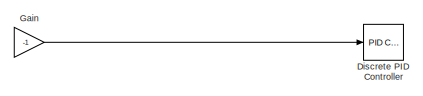
[diagram: root canvas - part 1/4, top center region]
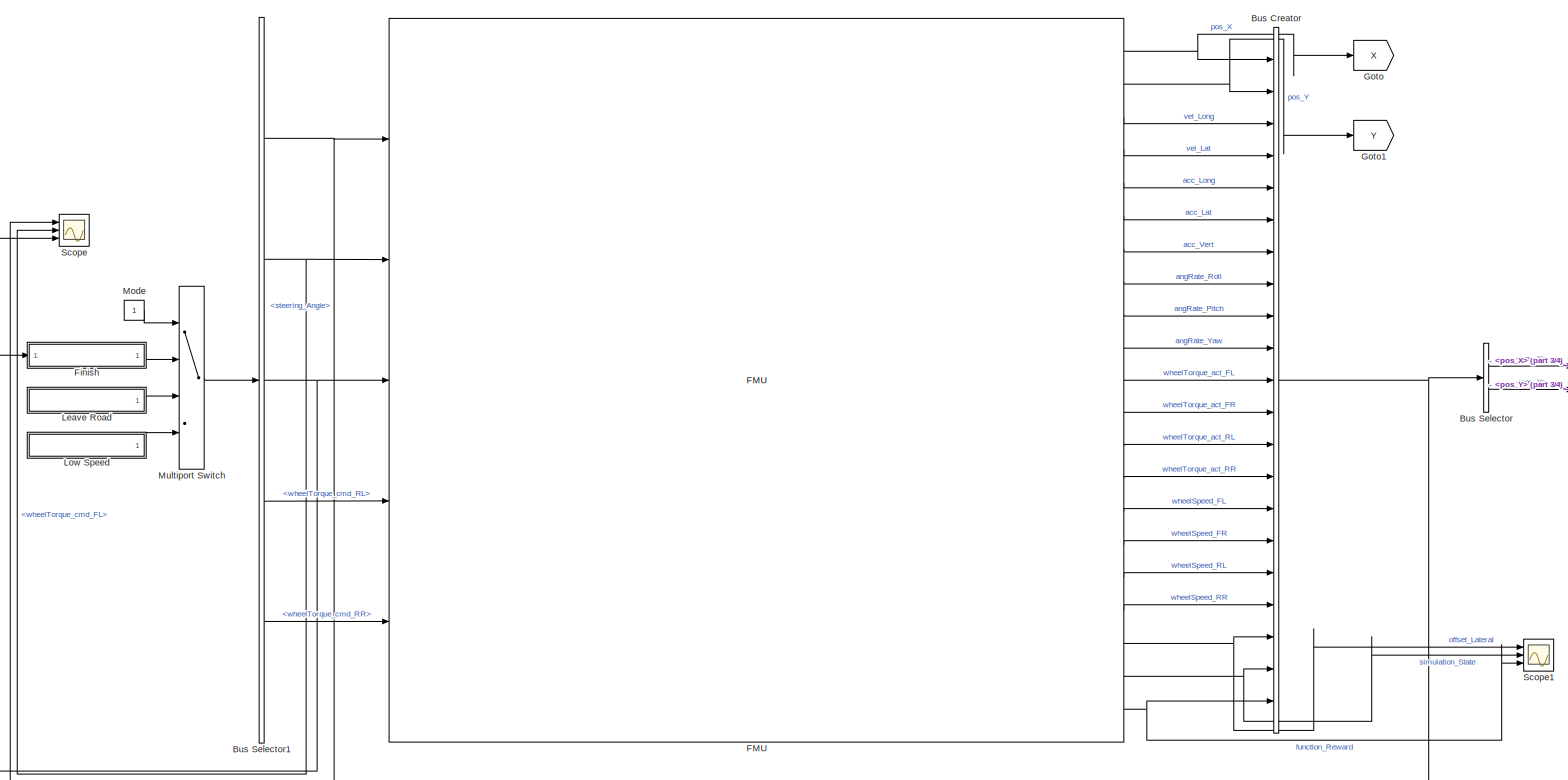
[diagram: root canvas - part 2/4, most of the canvas]
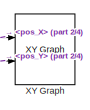
[diagram: root canvas - part 3/4, middle right region]
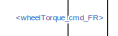
[diagram: root canvas - part 4/4, middle left region]
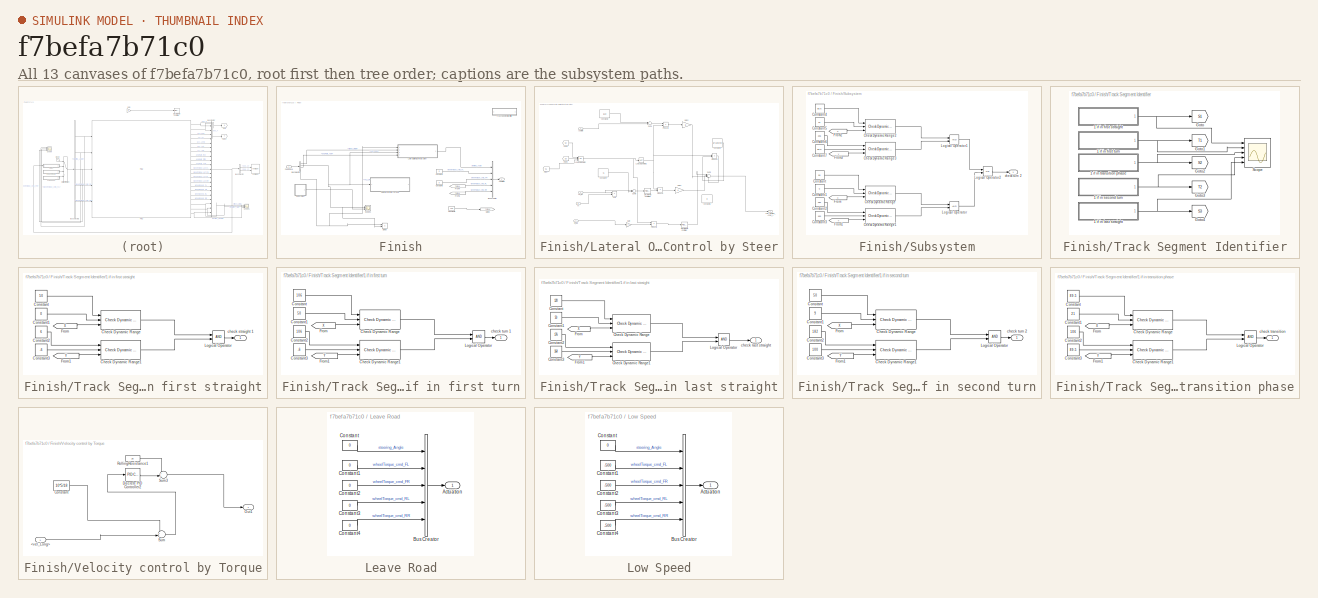
[diagram: thumbnail index - all 13 canvases of the model, root first then tree order]
MODEL slx_f7befa7b71c0
KIND model
CONFIG AbsTol = auto
CONFIG EnableMultiTasking = off
CONFIG FixedStep = 0.01
CONFIG MaxStep = auto
CONFIG MinStep = auto
CONFIG RelTol = 1e-3
CONFIG SampleTimeConstraint = Unconstrained
CONFIG Solver = FixedStepDiscrete
CONFIG SolverName = FixedStepDiscrete
CONFIG StartTime = 0.0
CONFIG StopTime = 25
BLOCK [BusCreator] Bus Creator
  DisplayOption = bar
  InheritFromInputs = on
  Inputs = 21
  Ports = [21, 1]
BLOCK [BusSelector] Bus Selector
  OutputAsBus = off
  OutputSignals = pos_X,pos_Y
  Ports = [1, 2]
BLOCK [BusSelector] Bus Selector1
  OutputAsBus = off
  OutputSignals = steering_Angle,wheelTorque_cmd_FL,wheelTorque_cmd_FR,wheelTorque_cmd_RL,wheelTorque_cmd_RR
  Ports = [1, 5]
BLOCK [Reference] Discrete PID Controller  REF=simulink/Continuous/PID Controller
  Ports = [1, 1]
  SourceBlock = simulink/Continuous/PID Controller
  SourceProductBaseCode = SL
  SourceProductName = Simulink
  SourceType = PID 1dof
BLOCK [FMU] FMU
  FMUMode = CoSimulation
  FMUName = MED2018_VehicleModelold.fmu
  FMUSampleTime = -1
  MaskDisplay = if (exist([Simulink.fileGenControl('get','CacheFolder') '\slprj\_fmu\29db2707c155699f4df1bff56a9fca68\MED2018_VehicleModelold\model.png'],'file'))\n    image([Simulink.fileGenControl('get','CacheFolder') '\slprj\_fmu\29db2707c155699f4df1bff56a9fca68\MED2018_VehicleModelold\model.png']);\n    text(0.03, 0.97, 'MED2018.VehicleModel', 'horizontalAlignment', 'left', 'verticalAlignment', 'top');\nelse\n   ...<+1083ch>
  MaskPromptString = Communication StepsizeCommunication stepsize between FMU and Simulink
  MaskType = MED2018.VehicleModel [Co-Simulation, v2.0]
  Ports = [5, 21]
BLOCK [SubSystem] Finish
  Ports = [1, 1]
  RequestExecContextInheritance = off
  Variant = off
BLOCK [Outport] Finish/Actuation
  IconDisplay = Port number
BLOCK [BusCreator] Finish/Bus Creator
  DisplayOption = bar
  InheritFromInputs = on
  Inputs = 5
  Ports = [5, 1]
BLOCK [BusSelector] Finish/Bus Selector
  OutputAsBus = off
  OutputSignals = offset_Lateral,vel_Long,angRate_Yaw,vel_Lat
  Ports = [1, 4]
BLOCK [Constant] Finish/Constant2
  Value = 0
BLOCK [Constant] Finish/Constant5
  Value = 0
BLOCK [Constant] Finish/Constant6
  Value = 100
BLOCK [Product] Finish/Divide
  InputSameDT = off
  Inputs = */
  OutDataTypeStr = Inherit: Inherit via internal rule
  Ports = [2, 1]
  RndMeth = Floor
  SaturateOnIntegerOverflow = off
BLOCK [Inport] Finish/Feedback
  IconDisplay = Port number
BLOCK [From] Finish/From1
  GotoTag = Torque
BLOCK [From] Finish/From7
  GotoTag = Torque
BLOCK [Goto] Finish/Goto3
  GotoTag = Torque
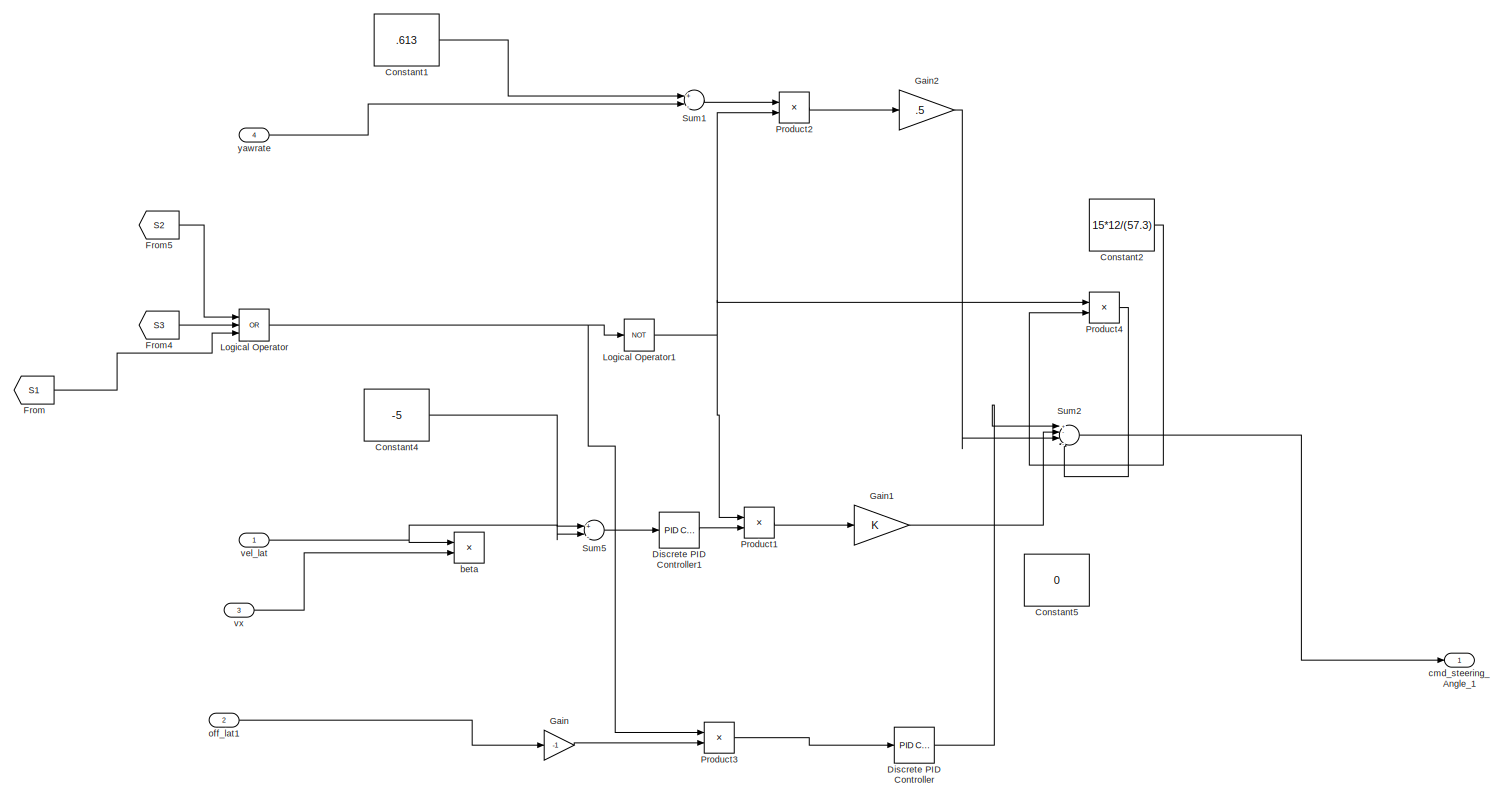
[diagram: Finish/Lateral Offset Control by Steer - part 1/1, most of the canvas]
BLOCK [SubSystem] Finish/Lateral Offset Control by Steer
  Ports = [4, 1]
  RequestExecContextInheritance = off
  Variant = off
BLOCK [Constant] Finish/Lateral Offset Control by Steer/Constant1
  Value = .613
BLOCK [Constant] Finish/Lateral Offset Control by Steer/Constant2
  Value = 15*12/(57.3)
BLOCK [Constant] Finish/Lateral Offset Control by Steer/Constant4
  Value = -5
BLOCK [Constant] Finish/Lateral Offset Control by Steer/Constant5
  Value = 0
BLOCK [Reference] Finish/Lateral Offset Control by Steer/Discrete PID Controller  REF=simulink/Continuous/PID Controller
  Ports = [1, 1]
  SourceBlock = simulink/Continuous/PID Controller
  SourceProductBaseCode = SL
  SourceProductName = Simulink
  SourceType = PID 1dof
BLOCK [Reference] Finish/Lateral Offset Control by Steer/Discrete PID Controller1  REF=simulink/Continuous/PID Controller
  Ports = [1, 1]
  SourceBlock = simulink/Continuous/PID Controller
  SourceProductBaseCode = SL
  SourceProductName = Simulink
  SourceType = PID 1dof
BLOCK [From] Finish/Lateral Offset Control by Steer/From
  GotoTag = S1
  TagVisibility = global
BLOCK [From] Finish/Lateral Offset Control by Steer/From4
  GotoTag = S3
  TagVisibility = global
BLOCK [From] Finish/Lateral Offset Control by Steer/From5
  GotoTag = S2
  TagVisibility = global
BLOCK [Gain] Finish/Lateral Offset Control by Steer/Gain
  Gain = -1
  OutDataTypeStr = Inherit: Inherit via internal rule
  ParamDataTypeStr = Inherit: Inherit via internal rule
  SaturateOnIntegerOverflow = off
BLOCK [Gain] Finish/Lateral Offset Control by Steer/Gain1
  OutDataTypeStr = Inherit: Inherit via internal rule
  ParamDataTypeStr = Inherit: Inherit via internal rule
  SaturateOnIntegerOverflow = off
BLOCK [Gain] Finish/Lateral Offset Control by Steer/Gain2
  Gain = .5
  OutDataTypeStr = Inherit: Inherit via internal rule
  ParamDataTypeStr = Inherit: Inherit via internal rule
  SaturateOnIntegerOverflow = off
BLOCK [Logic] Finish/Lateral Offset Control by Steer/Logical Operator
  AllPortsSameDT = off
  Inputs = 3
  Operator = OR
  OutDataTypeStr = boolean
  Ports = [3, 1]
BLOCK [Logic] Finish/Lateral Offset Control by Steer/Logical Operator1
  AllPortsSameDT = off
  Inputs = 3
  Operator = NOT
  OutDataTypeStr = boolean
  Ports = [1, 1]
BLOCK [Product] Finish/Lateral Offset Control by Steer/Product1
  InputSameDT = off
  OutDataTypeStr = Inherit: Inherit via internal rule
  Ports = [2, 1]
  RndMeth = Floor
  SaturateOnIntegerOverflow = off
BLOCK [Product] Finish/Lateral Offset Control by Steer/Product2
  InputSameDT = off
  OutDataTypeStr = Inherit: Inherit via internal rule
  Ports = [2, 1]
  RndMeth = Floor
  SaturateOnIntegerOverflow = off
BLOCK [Product] Finish/Lateral Offset Control by Steer/Product3
  InputSameDT = off
  OutDataTypeStr = Inherit: Inherit via internal rule
  Ports = [2, 1]
  RndMeth = Floor
  SaturateOnIntegerOverflow = off
BLOCK [Product] Finish/Lateral Offset Control by Steer/Product4
  InputSameDT = off
  OutDataTypeStr = Inherit: Inherit via internal rule
  Ports = [2, 1]
  RndMeth = Floor
  SaturateOnIntegerOverflow = off
BLOCK [Sum] Finish/Lateral Offset Control by Steer/Sum1
  InputSameDT = off
  Inputs = +|-
  OutDataTypeStr = Inherit: Inherit via internal rule
  Ports = [2, 1]
  SaturateOnIntegerOverflow = off
BLOCK [Sum] Finish/Lateral Offset Control by Steer/Sum2
  IconShape = round
  InputSameDT = off
  Inputs = +-|-+
  OutDataTypeStr = Inherit: Inherit via internal rule
  Ports = [4, 1]
  SaturateOnIntegerOverflow = off
BLOCK [Sum] Finish/Lateral Offset Control by Steer/Sum5
  InputSameDT = off
  Inputs = +|-
  OutDataTypeStr = Inherit: Inherit via internal rule
  Ports = [2, 1]
  SaturateOnIntegerOverflow = off
BLOCK [Product] Finish/Lateral Offset Control by Steer/beta
  InputSameDT = off
  Inputs = */
  OutDataTypeStr = Inherit: Inherit via internal rule
  Ports = [2, 1]
  RndMeth = Floor
  SaturateOnIntegerOverflow = off
BLOCK [Outport] Finish/Lateral Offset Control by Steer/cmd_steering_Angle_1
  IconDisplay = Port number
BLOCK [Inport] Finish/Lateral Offset Control by Steer/off_lat1
  IconDisplay = Port number
  Port = 2
BLOCK [Inport] Finish/Lateral Offset Control by Steer/vel_lat
  IconDisplay = Port number
BLOCK [Inport] Finish/Lateral Offset Control by Steer/vx
  IconDisplay = Port number
  Port = 3
BLOCK [Inport] Finish/Lateral Offset Control by Steer/yawrate
  IconDisplay = Port number
  Port = 4
BLOCK [Scope] Finish/Scope1
  NumInputPorts = 2
  Ports = [2]
  ScopeSpecificationString = Simulink.scopes.TimeScopeBlockCfg('CurrentConfiguration', extmgr.ConfigurationSet(extmgr.Configuration('Core','General UI',true),extmgr.Configuration('Core','Source UI',true),extmgr.Configuration('Sources','WiredSimulink',true,'DataLoggingVariableName','ScopeData1'),extmgr.Configuration('Visuals','Time Domain',true,'SerializedDisplays',{struct('MinYLimReal','6.68444','MaxYLimReal','26.68444','YLab...<+3091ch>
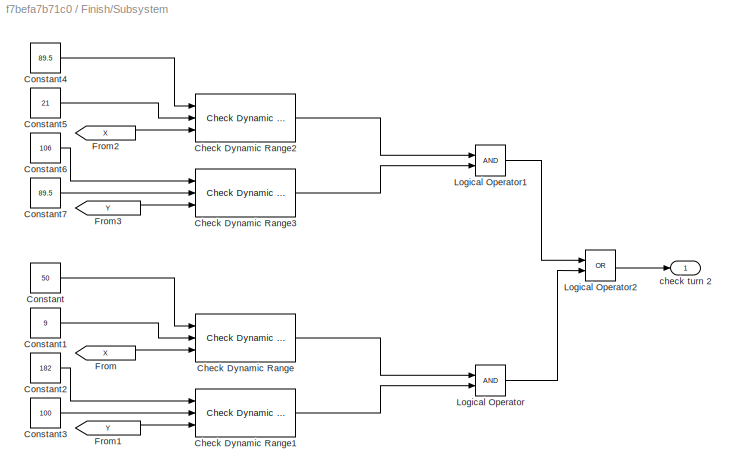
BLOCK [SubSystem] Finish/Subsystem
  Ports = [0, 1]
  RequestExecContextInheritance = off
  Variant = off
BLOCK [Reference] Finish/Subsystem/Check Dynamic Range  REF=simulink/Model
Verification/Check 
Dynamic Range
  Description = min < u < max
  Ports = [3, 1]
  SourceBlock = simulink/Model\nVerification/Check \nDynamic Range
  SourceProductBaseCode = SL
  SourceProductName = Simulink
  SourceType = Checks_DRange
BLOCK [Reference] Finish/Subsystem/Check Dynamic Range1  REF=simulink/Model
Verification/Check 
Dynamic Range
  Description = min < u < max
  Ports = [3, 1]
  SourceBlock = simulink/Model\nVerification/Check \nDynamic Range
  SourceProductBaseCode = SL
  SourceProductName = Simulink
  SourceType = Checks_DRange
BLOCK [Reference] Finish/Subsystem/Check Dynamic Range2  REF=simulink/Model
Verification/Check 
Dynamic Range
  Description = min < u < max
  Ports = [3, 1]
  SourceBlock = simulink/Model\nVerification/Check \nDynamic Range
  SourceProductBaseCode = SL
  SourceProductName = Simulink
  SourceType = Checks_DRange
BLOCK [Reference] Finish/Subsystem/Check Dynamic Range3  REF=simulink/Model
Verification/Check 
Dynamic Range
  Description = min < u < max
  Ports = [3, 1]
  SourceBlock = simulink/Model\nVerification/Check \nDynamic Range
  SourceProductBaseCode = SL
  SourceProductName = Simulink
  SourceType = Checks_DRange
BLOCK [Constant] Finish/Subsystem/Constant
  Value = 50
BLOCK [Constant] Finish/Subsystem/Constant1
  Value = 9
BLOCK [Constant] Finish/Subsystem/Constant2
  Value = 182
BLOCK [Constant] Finish/Subsystem/Constant3
  Value = 100
BLOCK [Constant] Finish/Subsystem/Constant4
  Value = 89.5
BLOCK [Constant] Finish/Subsystem/Constant5
  Value = 21
BLOCK [Constant] Finish/Subsystem/Constant6
  Value = 106
BLOCK [Constant] Finish/Subsystem/Constant7
  Value = 89.5
BLOCK [From] Finish/Subsystem/From
  GotoTag = X
  TagVisibility = global
BLOCK [From] Finish/Subsystem/From1
  GotoTag = Y
  TagVisibility = global
BLOCK [From] Finish/Subsystem/From2
  GotoTag = X
  TagVisibility = global
BLOCK [From] Finish/Subsystem/From3
  GotoTag = Y
  TagVisibility = global
BLOCK [Logic] Finish/Subsystem/Logical Operator
  AllPortsSameDT = off
  OutDataTypeStr = boolean
  Ports = [2, 1]
BLOCK [Logic] Finish/Subsystem/Logical Operator1
  AllPortsSameDT = off
  OutDataTypeStr = boolean
  Ports = [2, 1]
BLOCK [Logic] Finish/Subsystem/Logical Operator2
  AllPortsSameDT = off
  Operator = OR
  OutDataTypeStr = boolean
  Ports = [2, 1]
BLOCK [Outport] Finish/Subsystem/check turn 2
  IconDisplay = Port number
BLOCK [SubSystem] Finish/Track Segment Identifier
  Ports = []
  RequestExecContextInheritance = off
  Variant = off
BLOCK [SubSystem] Finish/Track Segment Identifier/1 if in first straight
  Ports = [0, 1]
  RequestExecContextInheritance = off
  Variant = off
BLOCK [Reference] Finish/Track Segment Identifier/1 if in first straight/Check Dynamic Range  REF=simulink/Model
Verification/Check 
Dynamic Range
  Description = min < u < max
  Ports = [3, 1]
  SourceBlock = simulink/Model\nVerification/Check \nDynamic Range
  SourceProductBaseCode = SL
  SourceProductName = Simulink
  SourceType = Checks_DRange
BLOCK [Reference] Finish/Track Segment Identifier/1 if in first straight/Check Dynamic Range1  REF=simulink/Model
Verification/Check 
Dynamic Range
  Description = min < u < max
  Ports = [3, 1]
  SourceBlock = simulink/Model\nVerification/Check \nDynamic Range
  SourceProductBaseCode = SL
  SourceProductName = Simulink
  SourceType = Checks_DRange
BLOCK [Constant] Finish/Track Segment Identifier/1 if in first straight/Constant
  Value = 50
BLOCK [Constant] Finish/Track Segment Identifier/1 if in first straight/Constant1
  Value = 0
BLOCK [Constant] Finish/Track Segment Identifier/1 if in first straight/Constant2
  Value = 6
BLOCK [Constant] Finish/Track Segment Identifier/1 if in first straight/Constant3
  Value = -6
BLOCK [From] Finish/Track Segment Identifier/1 if in first straight/From
  GotoTag = X
  TagVisibility = global
BLOCK [From] Finish/Track Segment Identifier/1 if in first straight/From1
  GotoTag = Y
  TagVisibility = global
BLOCK [Logic] Finish/Track Segment Identifier/1 if in first straight/Logical Operator
  AllPortsSameDT = off
  OutDataTypeStr = boolean
  Ports = [2, 1]
BLOCK [Outport] Finish/Track Segment Identifier/1 if in first straight/check straight 1
  IconDisplay = Port number
BLOCK [SubSystem] Finish/Track Segment Identifier/1 if in first turn
  Ports = [0, 1]
  RequestExecContextInheritance = off
  Variant = off
BLOCK [Reference] Finish/Track Segment Identifier/1 if in first turn/Check Dynamic Range  REF=simulink/Model
Verification/Check 
Dynamic Range
  Description = min < u < max
  Ports = [3, 1]
  SourceBlock = simulink/Model\nVerification/Check \nDynamic Range
  SourceProductBaseCode = SL
  SourceProductName = Simulink
  SourceType = Checks_DRange
BLOCK [Reference] Finish/Track Segment Identifier/1 if in first turn/Check Dynamic Range1  REF=simulink/Model
Verification/Check 
Dynamic Range
  Description = min < u < max
  Ports = [3, 1]
  SourceBlock = simulink/Model\nVerification/Check \nDynamic Range
  SourceProductBaseCode = SL
  SourceProductName = Simulink
  SourceType = Checks_DRange
BLOCK [Constant] Finish/Track Segment Identifier/1 if in first turn/Constant
  Value = 106
BLOCK [Constant] Finish/Track Segment Identifier/1 if in first turn/Constant1
  Value = 50
BLOCK [Constant] Finish/Track Segment Identifier/1 if in first turn/Constant2
  Value = 106
BLOCK [Constant] Finish/Track Segment Identifier/1 if in first turn/Constant3
  Value = -6
BLOCK [From] Finish/Track Segment Identifier/1 if in first turn/From
  GotoTag = X
  TagVisibility = global
BLOCK [From] Finish/Track Segment Identifier/1 if in first turn/From1
  GotoTag = Y
  TagVisibility = global
BLOCK [Logic] Finish/Track Segment Identifier/1 if in first turn/Logical Operator
  AllPortsSameDT = off
  OutDataTypeStr = boolean
  Ports = [2, 1]
BLOCK [Outport] Finish/Track Segment Identifier/1 if in first turn/check turn 1
  IconDisplay = Port number
BLOCK [SubSystem] Finish/Track Segment Identifier/1 if in last straight
  Ports = [0, 1]
  RequestExecContextInheritance = off
  Variant = off
BLOCK [Reference] Finish/Track Segment Identifier/1 if in last straight/Check Dynamic Range  REF=simulink/Model
Verification/Check 
Dynamic Range
  Description = min < u < max
  Ports = [3, 1]
  SourceBlock = simulink/Model\nVerification/Check \nDynamic Range
  SourceProductBaseCode = SL
  SourceProductName = Simulink
  SourceType = Checks_DRange
BLOCK [Reference] Finish/Track Segment Identifier/1 if in last straight/Check Dynamic Range1  REF=simulink/Model
Verification/Check 
Dynamic Range
  Description = min < u < max
  Ports = [3, 1]
  SourceBlock = simulink/Model\nVerification/Check \nDynamic Range
  SourceProductBaseCode = SL
  SourceProductName = Simulink
  SourceType = Checks_DRange
BLOCK [Constant] Finish/Track Segment Identifier/1 if in last straight/Constant
  Value = 120
BLOCK [Constant] Finish/Track Segment Identifier/1 if in last straight/Constant1
  Value = 50
BLOCK [Constant] Finish/Track Segment Identifier/1 if in last straight/Constant2
  Value = 176
BLOCK [Constant] Finish/Track Segment Identifier/1 if in last straight/Constant3
  Value = 164
BLOCK [From] Finish/Track Segment Identifier/1 if in last straight/From
  GotoTag = X
  TagVisibility = global
BLOCK [From] Finish/Track Segment Identifier/1 if in last straight/From1
  GotoTag = Y
  TagVisibility = global
BLOCK [Logic] Finish/Track Segment Identifier/1 if in last straight/Logical Operator
  AllPortsSameDT = off
  OutDataTypeStr = boolean
  Ports = [2, 1]
BLOCK [Outport] Finish/Track Segment Identifier/1 if in last straight/check last straight
  IconDisplay = Port number
BLOCK [SubSystem] Finish/Track Segment Identifier/1 if in second turn
  Ports = [0, 1]
  RequestExecContextInheritance = off
  Variant = off
BLOCK [Reference] Finish/Track Segment Identifier/1 if in second turn/Check Dynamic Range  REF=simulink/Model
Verification/Check 
Dynamic Range
  Description = min < u < max
  Ports = [3, 1]
  SourceBlock = simulink/Model\nVerification/Check \nDynamic Range
  SourceProductBaseCode = SL
  SourceProductName = Simulink
  SourceType = Checks_DRange
BLOCK [Reference] Finish/Track Segment Identifier/1 if in second turn/Check Dynamic Range1  REF=simulink/Model
Verification/Check 
Dynamic Range
  Description = min < u < max
  Ports = [3, 1]
  SourceBlock = simulink/Model\nVerification/Check \nDynamic Range
  SourceProductBaseCode = SL
  SourceProductName = Simulink
  SourceType = Checks_DRange
BLOCK [Constant] Finish/Track Segment Identifier/1 if in second turn/Constant
  Value = 50
BLOCK [Constant] Finish/Track Segment Identifier/1 if in second turn/Constant1
  Value = 9
BLOCK [Constant] Finish/Track Segment Identifier/1 if in second turn/Constant2
  Value = 182
BLOCK [Constant] Finish/Track Segment Identifier/1 if in second turn/Constant3
  Value = 100
BLOCK [From] Finish/Track Segment Identifier/1 if in second turn/From
  GotoTag = X
  TagVisibility = global
BLOCK [From] Finish/Track Segment Identifier/1 if in second turn/From1
  GotoTag = Y
  TagVisibility = global
BLOCK [Logic] Finish/Track Segment Identifier/1 if in second turn/Logical Operator
  AllPortsSameDT = off
  OutDataTypeStr = boolean
  Ports = [2, 1]
BLOCK [Outport] Finish/Track Segment Identifier/1 if in second turn/check turn 2
  IconDisplay = Port number
BLOCK [SubSystem] Finish/Track Segment Identifier/1 if in transition phase
  Ports = [0, 1]
  RequestExecContextInheritance = off
  Variant = off
BLOCK [Reference] Finish/Track Segment Identifier/1 if in transition phase/Check Dynamic Range  REF=simulink/Model
Verification/Check 
Dynamic Range
  Description = min < u < max
  Ports = [3, 1]
  SourceBlock = simulink/Model\nVerification/Check \nDynamic Range
  SourceProductBaseCode = SL
  SourceProductName = Simulink
  SourceType = Checks_DRange
BLOCK [Reference] Finish/Track Segment Identifier/1 if in transition phase/Check Dynamic Range1  REF=simulink/Model
Verification/Check 
Dynamic Range
  Description = min < u < max
  Ports = [3, 1]
  SourceBlock = simulink/Model\nVerification/Check \nDynamic Range
  SourceProductBaseCode = SL
  SourceProductName = Simulink
  SourceType = Checks_DRange
BLOCK [Constant] Finish/Track Segment Identifier/1 if in transition phase/Constant
  Value = 89.5
BLOCK [Constant] Finish/Track Segment Identifier/1 if in transition phase/Constant1
  Value = 21
BLOCK [Constant] Finish/Track Segment Identifier/1 if in transition phase/Constant2
  Value = 106
BLOCK [Constant] Finish/Track Segment Identifier/1 if in transition phase/Constant3
  Value = 89.5
BLOCK [From] Finish/Track Segment Identifier/1 if in transition phase/From
  GotoTag = X
  TagVisibility = global
BLOCK [From] Finish/Track Segment Identifier/1 if in transition phase/From1
  GotoTag = Y
  TagVisibility = global
BLOCK [Logic] Finish/Track Segment Identifier/1 if in transition phase/Logical Operator
  AllPortsSameDT = off
  OutDataTypeStr = boolean
  Ports = [2, 1]
BLOCK [Outport] Finish/Track Segment Identifier/1 if in transition phase/check transition
  IconDisplay = Port number
BLOCK [Goto] Finish/Track Segment Identifier/Goto
  GotoTag = S1
  TagVisibility = global
BLOCK [Goto] Finish/Track Segment Identifier/Goto1
  GotoTag = T1
  TagVisibility = global
BLOCK [Goto] Finish/Track Segment Identifier/Goto2
  GotoTag = S2
  TagVisibility = global
BLOCK [Goto] Finish/Track Segment Identifier/Goto3
  GotoTag = T2
  TagVisibility = global
BLOCK [Goto] Finish/Track Segment Identifier/Goto4
  GotoTag = S3
  TagVisibility = global
BLOCK [Scope] Finish/Track Segment Identifier/Scope
  NumInputPorts = 5
  Ports = [5]
  ScopeSpecificationString = Simulink.scopes.TimeScopeBlockCfg('CurrentConfiguration', extmgr.ConfigurationSet(extmgr.Configuration('Core','General UI',true),extmgr.Configuration('Core','Source UI',true),extmgr.Configuration('Sources','WiredSimulink',true),extmgr.Configuration('Visuals','Time Domain',true,'SerializedDisplays',{struct('MinYLimReal','-0.125','MaxYLimReal','1.125','YLabelReal','','MinYLimMag','0.00000','MaxYLimM...<+1476ch>
BLOCK [SubSystem] Finish/Velocity control by Torque
  Ports = [1, 1]
  RequestExecContextInheritance = off
  Variant = off
BLOCK [Inport] Finish/Velocity control by Torque/<vel_Long>
  IconDisplay = Port number
BLOCK [Constant] Finish/Velocity control by Torque/Constant
  Value = 10*5/18
BLOCK [Reference] Finish/Velocity control by Torque/Discrete PID Controller2  REF=simulink/Continuous/PID Controller
  Ports = [1, 1]
  SourceBlock = simulink/Continuous/PID Controller
  SourceProductBaseCode = SL
  SourceProductName = Simulink
  SourceType = PID 1dof
BLOCK [Outport] Finish/Velocity control by Torque/Out1
  IconDisplay = Port number
BLOCK [Constant] Finish/Velocity control by Torque/RollingResistance1
  Value = 25
BLOCK [Sum] Finish/Velocity control by Torque/Sum
  IconShape = round
  InputSameDT = off
  Inputs = +-|
  OutDataTypeStr = Inherit: Inherit via internal rule
  Ports = [2, 1]
  SaturateOnIntegerOverflow = off
BLOCK [Sum] Finish/Velocity control by Torque/Sum3
  IconShape = round
  InputSameDT = off
  Inputs = ++|
  OutDataTypeStr = Inherit: Inherit via internal rule
  Ports = [2, 1]
  SaturateOnIntegerOverflow = off
BLOCK [Gain] Gain
  Gain = -1
  OutDataTypeStr = Inherit: Inherit via internal rule
  ParamDataTypeStr = Inherit: Inherit via internal rule
  SaturateOnIntegerOverflow = off
BLOCK [Goto] Goto
  GotoTag = X
  TagVisibility = global
BLOCK [Goto] Goto1
  GotoTag = Y
  TagVisibility = global
BLOCK [SubSystem] Leave Road
  Ports = [0, 1]
  RequestExecContextInheritance = off
  Variant = off
BLOCK [Outport] Leave Road/Actuation
  IconDisplay = Port number
BLOCK [BusCreator] Leave Road/Bus Creator
  DisplayOption = bar
  InheritFromInputs = on
  Inputs = 5
  Ports = [5, 1]
BLOCK [Constant] Leave Road/Constant
  Value = 0
BLOCK [Constant] Leave Road/Constant1
  Value = 0
BLOCK [Constant] Leave Road/Constant2
  Value = 0
BLOCK [Constant] Leave Road/Constant3
  Value = 0
BLOCK [Constant] Leave Road/Constant4
  Value = 0
BLOCK [SubSystem] Low Speed
  Ports = [0, 1]
  RequestExecContextInheritance = off
  Variant = off
BLOCK [Outport] Low Speed/Actuation
  IconDisplay = Port number
BLOCK [BusCreator] Low Speed/Bus Creator
  DisplayOption = bar
  InheritFromInputs = on
  Inputs = 5
  Ports = [5, 1]
BLOCK [Constant] Low Speed/Constant
  Value = 0
BLOCK [Constant] Low Speed/Constant1
  Value = -500
BLOCK [Constant] Low Speed/Constant2
  Value = -500
BLOCK [Constant] Low Speed/Constant3
  Value = -500
BLOCK [Constant] Low Speed/Constant4
  Value = -500
BLOCK [Constant] Mode
BLOCK [MultiPortSwitch] Multiport Switch
  InputSameDT = off
  Ports = [4, 1]
  SaturateOnIntegerOverflow = off
BLOCK [Scope] Scope
  NumInputPorts = 3
  Ports = [3]
  ScopeSpecificationString = Simulink.scopes.TimeScopeBlockCfg('CurrentConfiguration', extmgr.ConfigurationSet(extmgr.Configuration('Core','General UI',true),extmgr.Configuration('Core','Source UI',true),extmgr.Configuration('Sources','WiredSimulink',true),extmgr.Configuration('Visuals','Time Domain',true,'SerializedDisplays',{struct('MinYLimReal','-8.3368','MaxYLimReal','1.34708','YLabelReal','','MinYLimMag','0.00000','MaxYL...<+2736ch>
BLOCK [Scope] Scope1
  NumInputPorts = 3
  Ports = [3]
  ScopeSpecificationString = Simulink.scopes.TimeScopeBlockCfg('CurrentConfiguration', extmgr.ConfigurationSet(extmgr.Configuration('Core','General UI',true),extmgr.Configuration('Core','Source UI',true),extmgr.Configuration('Sources','WiredSimulink',true,'DataLoggingVariableName','ScopeData1'),extmgr.Configuration('Visuals','Time Domain',true,'SerializedDisplays',{struct('MinYLimReal','-38.76728','MaxYLimReal','71.25309','YL...<+3112ch>
BLOCK [Reference] XY Graph  REF=simulink/Sinks/XY Graph
  Ports = [2]
  SourceBlock = simulink/Sinks/XY Graph
  SourceProductBaseCode = SL
  SourceProductName = Simulink
  SourceType = XY scope.
NET Bus Creator:1 -> Bus Selector:1, Finish:1
NET Bus Selector1:1 -> FMU:1, Scope:1
NET Bus Selector1:2 -> FMU:2, Scope:2
NET Bus Selector1:3 -> FMU:3, Scope:3
LINE Bus Selector1:4 -> FMU:4
LINE Bus Selector1:5 -> FMU:5
LINE Bus Selector:1 -> XY Graph:1
LINE Bus Selector:2 -> XY Graph:2
NET FMU:1 -> Bus Creator:1, Goto:1
LINE FMU:10 -> Bus Creator:10
LINE FMU:11 -> Bus Creator:11
LINE FMU:12 -> Bus Creator:12
LINE FMU:13 -> Bus Creator:13
LINE FMU:14 -> Bus Creator:14
LINE FMU:15 -> Bus Creator:15
LINE FMU:16 -> Bus Creator:16
LINE FMU:17 -> Bus Creator:17
LINE FMU:18 -> Bus Creator:18
NET FMU:19 -> Bus Creator:19, Scope1:1
NET FMU:2 -> Bus Creator:2, Goto1:1
NET FMU:20 -> Bus Creator:20, Scope1:2
NET FMU:21 -> Bus Creator:21, Scope1:3
LINE FMU:3 -> Bus Creator:3
LINE FMU:4 -> Bus Creator:4
LINE FMU:5 -> Bus Creator:5
LINE FMU:6 -> Bus Creator:6
LINE FMU:7 -> Bus Creator:7
LINE FMU:8 -> Bus Creator:8
LINE FMU:9 -> Bus Creator:9
LINE Finish/Bus Creator:1 -> Finish/Actuation:1
LINE Finish/Bus Selector:1 -> Finish/Lateral Offset Control by Steer:2
NET Finish/Bus Selector:2 -> Finish/Divide:2, Finish/Lateral Offset Control by Steer:3, Finish/Scope1:1, Finish/Velocity control by Torque:1
LINE Finish/Bus Selector:3 -> Finish/Lateral Offset Control by Steer:4
NET Finish/Bus Selector:4 -> Finish/Divide:1, Finish/Lateral Offset Control by Steer:1
LINE Finish/Constant2:1 -> Finish/Bus Creator:2
LINE Finish/Constant5:1 -> Finish/Bus Creator:3
LINE Finish/Constant6:1 -> Finish/Goto3:1
LINE Finish/Feedback:1 -> Finish/Bus Selector:1
LINE Finish/From1:1 -> Finish/Bus Creator:5
LINE Finish/From7:1 -> Finish/Bus Creator:4
LINE Finish/Lateral Offset Control by Steer/Constant1:1 -> Finish/Lateral Offset Control by Steer/Sum1:1
LINE Finish/Lateral Offset Control by Steer/Constant2:1 -> Finish/Lateral Offset Control by Steer/Product4:2
LINE Finish/Lateral Offset Control by Steer/Constant4:1 -> Finish/Lateral Offset Control by Steer/Sum5:1
LINE Finish/Lateral Offset Control by Steer/Discrete PID Controller1:1 -> Finish/Lateral Offset Control by Steer/Product1:2
LINE Finish/Lateral Offset Control by Steer/Discrete PID Controller:1 -> Finish/Lateral Offset Control by Steer/Sum2:1
LINE Finish/Lateral Offset Control by Steer/From4:1 -> Finish/Lateral Offset Control by Steer/Logical Operator:2
LINE Finish/Lateral Offset Control by Steer/From5:1 -> Finish/Lateral Offset Control by Steer/Logical Operator:1
LINE Finish/Lateral Offset Control by Steer/From:1 -> Finish/Lateral Offset Control by Steer/Logical Operator:3
LINE Finish/Lateral Offset Control by Steer/Gain1:1 -> Finish/Lateral Offset Control by Steer/Sum2:2
LINE Finish/Lateral Offset Control by Steer/Gain2:1 -> Finish/Lateral Offset Control by Steer/Sum2:3
LINE Finish/Lateral Offset Control by Steer/Gain:1 -> Finish/Lateral Offset Control by Steer/Product3:2
NET Finish/Lateral Offset Control by Steer/Logical Operator1:1 -> Finish/Lateral Offset Control by Steer/Product1:1, Finish/Lateral Offset Control by Steer/Product2:2, Finish/Lateral Offset Control by Steer/Product4:1
NET Finish/Lateral Offset Control by Steer/Logical Operator:1 -> Finish/Lateral Offset Control by Steer/Logical Operator1:1, Finish/Lateral Offset Control by Steer/Product3:1
LINE Finish/Lateral Offset Control by Steer/Product1:1 -> Finish/Lateral Offset Control by Steer/Gain1:1
LINE Finish/Lateral Offset Control by Steer/Product2:1 -> Finish/Lateral Offset Control by Steer/Gain2:1
LINE Finish/Lateral Offset Control by Steer/Product3:1 -> Finish/Lateral Offset Control by Steer/Discrete PID Controller:1
LINE Finish/Lateral Offset Control by Steer/Product4:1 -> Finish/Lateral Offset Control by Steer/Sum2:4
LINE Finish/Lateral Offset Control by Steer/Sum1:1 -> Finish/Lateral Offset Control by Steer/Product2:1
LINE Finish/Lateral Offset Control by Steer/Sum2:1 -> Finish/Lateral Offset Control by Steer/cmd_steering_Angle_1:1
LINE Finish/Lateral Offset Control by Steer/Sum5:1 -> Finish/Lateral Offset Control by Steer/Discrete PID Controller1:1
LINE Finish/Lateral Offset Control by Steer/off_lat1:1 -> Finish/Lateral Offset Control by Steer/Gain:1
NET Finish/Lateral Offset Control by Steer/vel_lat:1 -> Finish/Lateral Offset Control by Steer/Sum5:2, Finish/Lateral Offset Control by Steer/beta:1
LINE Finish/Lateral Offset Control by Steer/vx:1 -> Finish/Lateral Offset Control by Steer/beta:2
LINE Finish/Lateral Offset Control by Steer/yawrate:1 -> Finish/Lateral Offset Control by Steer/Sum1:2
LINE Finish/Lateral Offset Control by Steer:1 -> Finish/Bus Creator:1
LINE Finish/Subsystem/Check Dynamic Range1:1 -> Finish/Subsystem/Logical Operator:2
LINE Finish/Subsystem/Check Dynamic Range2:1 -> Finish/Subsystem/Logical Operator1:1
LINE Finish/Subsystem/Check Dynamic Range3:1 -> Finish/Subsystem/Logical Operator1:2
LINE Finish/Subsystem/Check Dynamic Range:1 -> Finish/Subsystem/Logical Operator:1
LINE Finish/Subsystem/Constant1:1 -> Finish/Subsystem/Check Dynamic Range:2
LINE Finish/Subsystem/Constant2:1 -> Finish/Subsystem/Check Dynamic Range1:1
LINE Finish/Subsystem/Constant3:1 -> Finish/Subsystem/Check Dynamic Range1:2
LINE Finish/Subsystem/Constant4:1 -> Finish/Subsystem/Check Dynamic Range2:1
LINE Finish/Subsystem/Constant5:1 -> Finish/Subsystem/Check Dynamic Range2:2
LINE Finish/Subsystem/Constant6:1 -> Finish/Subsystem/Check Dynamic Range3:1
LINE Finish/Subsystem/Constant7:1 -> Finish/Subsystem/Check Dynamic Range3:2
LINE Finish/Subsystem/Constant:1 -> Finish/Subsystem/Check Dynamic Range:1
LINE Finish/Subsystem/From1:1 -> Finish/Subsystem/Check Dynamic Range1:3
LINE Finish/Subsystem/From2:1 -> Finish/Subsystem/Check Dynamic Range2:3
LINE Finish/Subsystem/From3:1 -> Finish/Subsystem/Check Dynamic Range3:3
LINE Finish/Subsystem/From:1 -> Finish/Subsystem/Check Dynamic Range:3
LINE Finish/Subsystem/Logical Operator1:1 -> Finish/Subsystem/Logical Operator2:1
LINE Finish/Subsystem/Logical Operator2:1 -> Finish/Subsystem/check turn 2:1
LINE Finish/Subsystem/Logical Operator:1 -> Finish/Subsystem/Logical Operator2:2
LINE Finish/Subsystem:1 -> Finish/Scope1:2
LINE Finish/Track Segment Identifier/1 if in first straight/Check Dynamic Range1:1 -> Finish/Track Segment Identifier/1 if in first straight/Logical Operator:2
LINE Finish/Track Segment Identifier/1 if in first straight/Check Dynamic Range:1 -> Finish/Track Segment Identifier/1 if in first straight/Logical Operator:1
LINE Finish/Track Segment Identifier/1 if in first straight/Constant1:1 -> Finish/Track Segment Identifier/1 if in first straight/Check Dynamic Range:2
LINE Finish/Track Segment Identifier/1 if in first straight/Constant2:1 -> Finish/Track Segment Identifier/1 if in first straight/Check Dynamic Range1:1
LINE Finish/Track Segment Identifier/1 if in first straight/Constant3:1 -> Finish/Track Segment Identifier/1 if in first straight/Check Dynamic Range1:2
LINE Finish/Track Segment Identifier/1 if in first straight/Constant:1 -> Finish/Track Segment Identifier/1 if in first straight/Check Dynamic Range:1
LINE Finish/Track Segment Identifier/1 if in first straight/From1:1 -> Finish/Track Segment Identifier/1 if in first straight/Check Dynamic Range1:3
LINE Finish/Track Segment Identifier/1 if in first straight/From:1 -> Finish/Track Segment Identifier/1 if in first straight/Check Dynamic Range:3
LINE Finish/Track Segment Identifier/1 if in first straight/Logical Operator:1 -> Finish/Track Segment Identifier/1 if in first straight/check straight 1:1
NET Finish/Track Segment Identifier/1 if in first straight:1 -> Finish/Track Segment Identifier/Goto:1, Finish/Track Segment Identifier/Scope:1
LINE Finish/Track Segment Identifier/1 if in first turn/Check Dynamic Range1:1 -> Finish/Track Segment Identifier/1 if in first turn/Logical Operator:2
LINE Finish/Track Segment Identifier/1 if in first turn/Check Dynamic Range:1 -> Finish/Track Segment Identifier/1 if in first turn/Logical Operator:1
LINE Finish/Track Segment Identifier/1 if in first turn/Constant1:1 -> Finish/Track Segment Identifier/1 if in first turn/Check Dynamic Range:2
LINE Finish/Track Segment Identifier/1 if in first turn/Constant2:1 -> Finish/Track Segment Identifier/1 if in first turn/Check Dynamic Range1:1
LINE Finish/Track Segment Identifier/1 if in first turn/Constant3:1 -> Finish/Track Segment Identifier/1 if in first turn/Check Dynamic Range1:2
LINE Finish/Track Segment Identifier/1 if in first turn/Constant:1 -> Finish/Track Segment Identifier/1 if in first turn/Check Dynamic Range:1
LINE Finish/Track Segment Identifier/1 if in first turn/From1:1 -> Finish/Track Segment Identifier/1 if in first turn/Check Dynamic Range1:3
LINE Finish/Track Segment Identifier/1 if in first turn/From:1 -> Finish/Track Segment Identifier/1 if in first turn/Check Dynamic Range:3
LINE Finish/Track Segment Identifier/1 if in first turn/Logical Operator:1 -> Finish/Track Segment Identifier/1 if in first turn/check turn 1:1
NET Finish/Track Segment Identifier/1 if in first turn:1 -> Finish/Track Segment Identifier/Goto1:1, Finish/Track Segment Identifier/Scope:2
LINE Finish/Track Segment Identifier/1 if in last straight/Check Dynamic Range1:1 -> Finish/Track Segment Identifier/1 if in last straight/Logical Operator:2
LINE Finish/Track Segment Identifier/1 if in last straight/Check Dynamic Range:1 -> Finish/Track Segment Identifier/1 if in last straight/Logical Operator:1
LINE Finish/Track Segment Identifier/1 if in last straight/Constant1:1 -> Finish/Track Segment Identifier/1 if in last straight/Check Dynamic Range:2
LINE Finish/Track Segment Identifier/1 if in last straight/Constant2:1 -> Finish/Track Segment Identifier/1 if in last straight/Check Dynamic Range1:1
LINE Finish/Track Segment Identifier/1 if in last straight/Constant3:1 -> Finish/Track Segment Identifier/1 if in last straight/Check Dynamic Range1:2
LINE Finish/Track Segment Identifier/1 if in last straight/Constant:1 -> Finish/Track Segment Identifier/1 if in last straight/Check Dynamic Range:1
LINE Finish/Track Segment Identifier/1 if in last straight/From1:1 -> Finish/Track Segment Identifier/1 if in last straight/Check Dynamic Range1:3
LINE Finish/Track Segment Identifier/1 if in last straight/From:1 -> Finish/Track Segment Identifier/1 if in last straight/Check Dynamic Range:3
LINE Finish/Track Segment Identifier/1 if in last straight/Logical Operator:1 -> Finish/Track Segment Identifier/1 if in last straight/check last straight:1
NET Finish/Track Segment Identifier/1 if in last straight:1 -> Finish/Track Segment Identifier/Goto4:1, Finish/Track Segment Identifier/Scope:5
LINE Finish/Track Segment Identifier/1 if in second turn/Check Dynamic Range1:1 -> Finish/Track Segment Identifier/1 if in second turn/Logical Operator:2
LINE Finish/Track Segment Identifier/1 if in second turn/Check Dynamic Range:1 -> Finish/Track Segment Identifier/1 if in second turn/Logical Operator:1
LINE Finish/Track Segment Identifier/1 if in second turn/Constant1:1 -> Finish/Track Segment Identifier/1 if in second turn/Check Dynamic Range:2
LINE Finish/Track Segment Identifier/1 if in second turn/Constant2:1 -> Finish/Track Segment Identifier/1 if in second turn/Check Dynamic Range1:1
LINE Finish/Track Segment Identifier/1 if in second turn/Constant3:1 -> Finish/Track Segment Identifier/1 if in second turn/Check Dynamic Range1:2
LINE Finish/Track Segment Identifier/1 if in second turn/Constant:1 -> Finish/Track Segment Identifier/1 if in second turn/Check Dynamic Range:1
LINE Finish/Track Segment Identifier/1 if in second turn/From1:1 -> Finish/Track Segment Identifier/1 if in second turn/Check Dynamic Range1:3
LINE Finish/Track Segment Identifier/1 if in second turn/From:1 -> Finish/Track Segment Identifier/1 if in second turn/Check Dynamic Range:3
LINE Finish/Track Segment Identifier/1 if in second turn/Logical Operator:1 -> Finish/Track Segment Identifier/1 if in second turn/check turn 2:1
NET Finish/Track Segment Identifier/1 if in second turn:1 -> Finish/Track Segment Identifier/Goto3:1, Finish/Track Segment Identifier/Scope:4
LINE Finish/Track Segment Identifier/1 if in transition phase/Check Dynamic Range1:1 -> Finish/Track Segment Identifier/1 if in transition phase/Logical Operator:2
LINE Finish/Track Segment Identifier/1 if in transition phase/Check Dynamic Range:1 -> Finish/Track Segment Identifier/1 if in transition phase/Logical Operator:1
LINE Finish/Track Segment Identifier/1 if in transition phase/Constant1:1 -> Finish/Track Segment Identifier/1 if in transition phase/Check Dynamic Range:2
LINE Finish/Track Segment Identifier/1 if in transition phase/Constant2:1 -> Finish/Track Segment Identifier/1 if in transition phase/Check Dynamic Range1:1
LINE Finish/Track Segment Identifier/1 if in transition phase/Constant3:1 -> Finish/Track Segment Identifier/1 if in transition phase/Check Dynamic Range1:2
LINE Finish/Track Segment Identifier/1 if in transition phase/Constant:1 -> Finish/Track Segment Identifier/1 if in transition phase/Check Dynamic Range:1
LINE Finish/Track Segment Identifier/1 if in transition phase/From1:1 -> Finish/Track Segment Identifier/1 if in transition phase/Check Dynamic Range1:3
LINE Finish/Track Segment Identifier/1 if in transition phase/From:1 -> Finish/Track Segment Identifier/1 if in transition phase/Check Dynamic Range:3
LINE Finish/Track Segment Identifier/1 if in transition phase/Logical Operator:1 -> Finish/Track Segment Identifier/1 if in transition phase/check transition:1
NET Finish/Track Segment Identifier/1 if in transition phase:1 -> Finish/Track Segment Identifier/Goto2:1, Finish/Track Segment Identifier/Scope:3
LINE Finish/Velocity control by Torque/<vel_Long>:1 -> Finish/Velocity control by Torque/Sum:2
LINE Finish/Velocity control by Torque/Constant:1 -> Finish/Velocity control by Torque/Sum:1
LINE Finish/Velocity control by Torque/Discrete PID Controller2:1 -> Finish/Velocity control by Torque/Sum3:2
LINE Finish/Velocity control by Torque/RollingResistance1:1 -> Finish/Velocity control by Torque/Sum3:1
LINE Finish/Velocity control by Torque/Sum3:1 -> Finish/Velocity control by Torque/Out1:1
LINE Finish/Velocity control by Torque/Sum:1 -> Finish/Velocity control by Torque/Discrete PID Controller2:1
LINE Finish:1 -> Multiport Switch:2
LINE Gain:1 -> Discrete PID Controller:1
LINE Leave Road/Bus Creator:1 -> Leave Road/Actuation:1
LINE Leave Road/Constant1:1 -> Leave Road/Bus Creator:2
LINE Leave Road/Constant2:1 -> Leave Road/Bus Creator:3
LINE Leave Road/Constant3:1 -> Leave Road/Bus Creator:4
LINE Leave Road/Constant4:1 -> Leave Road/Bus Creator:5
LINE Leave Road/Constant:1 -> Leave Road/Bus Creator:1
LINE Leave Road:1 -> Multiport Switch:3
LINE Low Speed/Bus Creator:1 -> Low Speed/Actuation:1
LINE Low Speed/Constant1:1 -> Low Speed/Bus Creator:2
LINE Low Speed/Constant2:1 -> Low Speed/Bus Creator:3
LINE Low Speed/Constant3:1 -> Low Speed/Bus Creator:4
LINE Low Speed/Constant4:1 -> Low Speed/Bus Creator:5
LINE Low Speed/Constant:1 -> Low Speed/Bus Creator:1
LINE Low Speed:1 -> Multiport Switch:4
LINE Mode:1 -> Multiport Switch:1
LINE Multiport Switch:1 -> Bus Selector1:1
note: NET lines group one-source signal fan-out (src -> all destinations, sorted); 1:1 wires keep LINE
